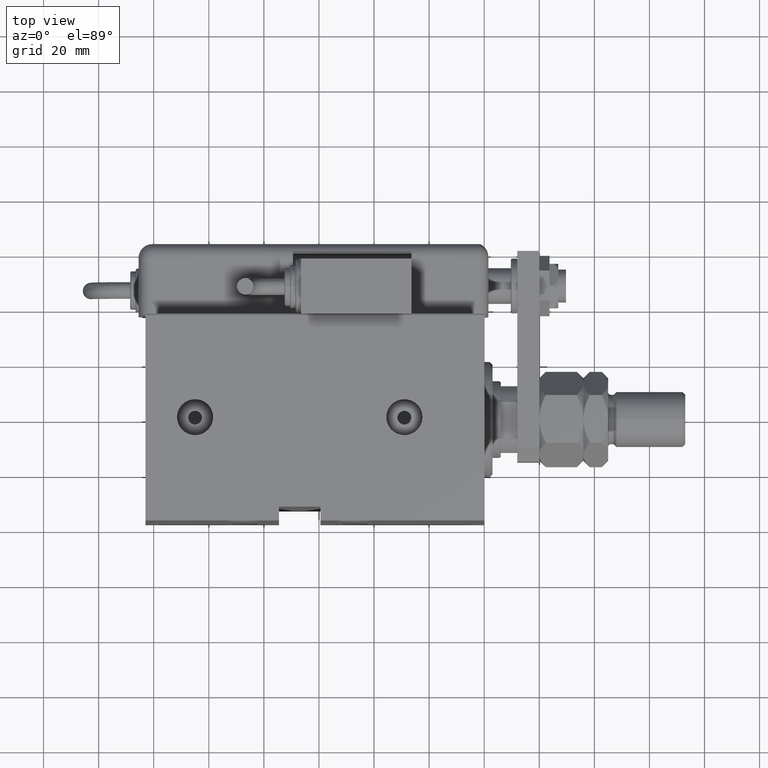
[diagram: clean part render]
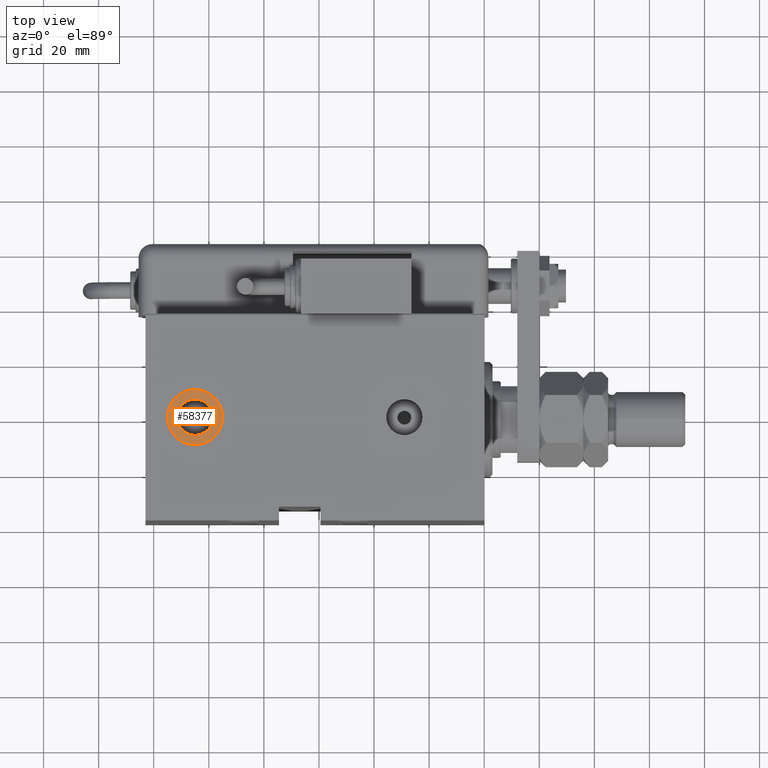
[diagram: same view with one face highlighted and labeled with its STEP entity id]
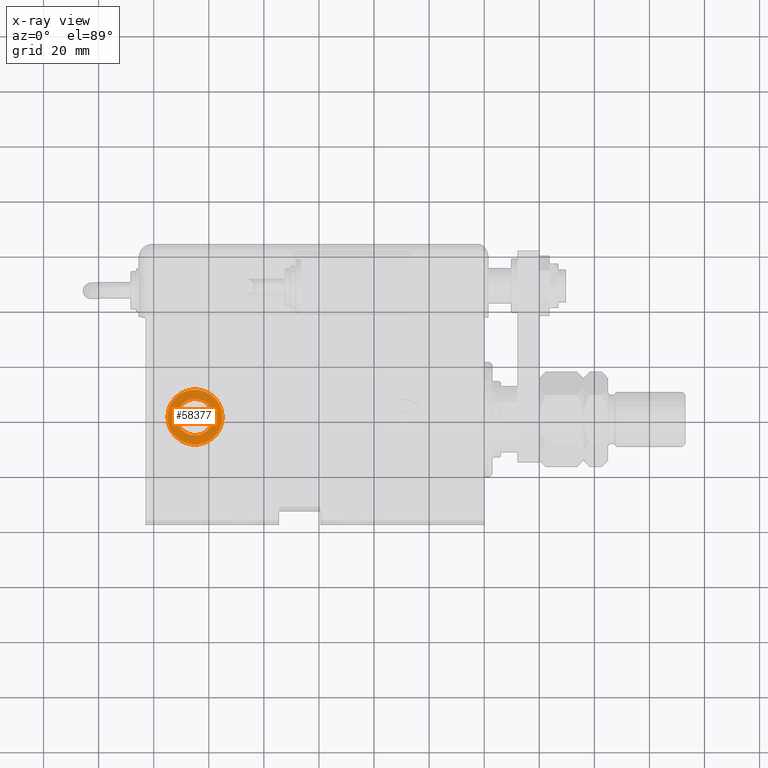
[diagram: x-ray of the same camera — body ghosted, the highlighted face saturated]
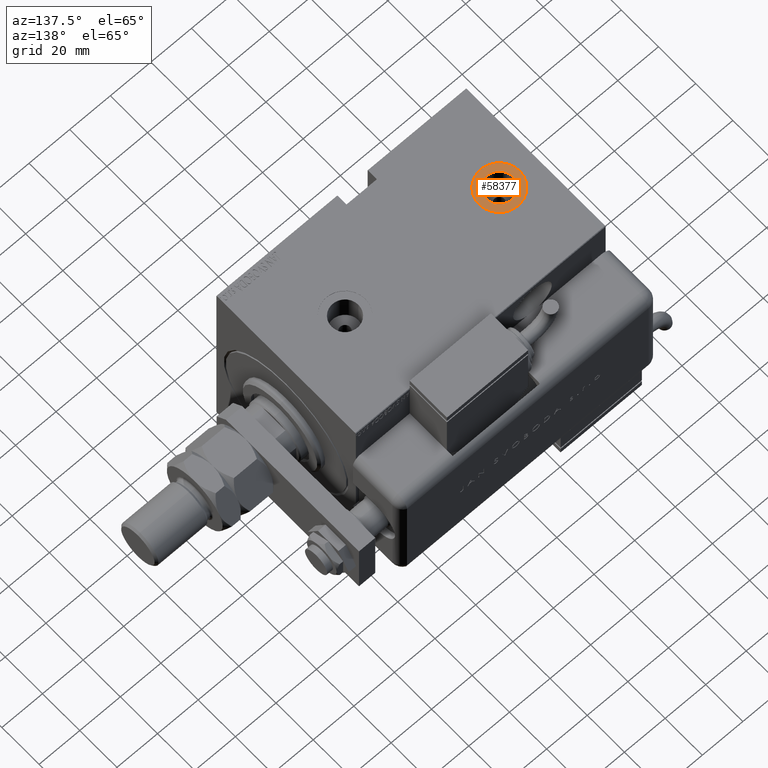
[diagram: same view with one face highlighted and labeled with its STEP entity id]
A machine part, top view. The second image highlights one B-rep face of the part: STEP entity #58377.
The next image is the same camera in x-ray: the body ghosted, the highlighted face saturated — about 0% of this face is hidden behind the body in this view.
A second angle (auxiliary view) of the same face is appended — the face is thin or edge-on in the first view.
In plain terms, the highlighted planar face has unit normal (0, 0, 1).
Its self-contained STEP definition (entity closure, byte-faithful):
#285 = DIRECTION ( 'NONE',  ( 0.000000000000000000, 0.000000000000000000, 1.000000000000000000 ) ) ;
#524 = FACE_BOUND ( 'NONE', #55594, .T. ) ;
#1138 = DIRECTION ( 'NONE',  ( 0.000000000000000000, 0.000000000000000000, 1.000000000000000000 ) ) ;
#1754 = CARTESIAN_POINT ( 'NONE',  ( 105.0000000000000000, -9.251858538542975377E-15, 49.90000000000000568 ) ) ;
#2909 = CIRCLE ( 'NONE', #55765, 9.999999999999994671 ) ;
#3522 = VERTEX_POINT ( 'NONE', #39454 ) ;
#6378 = EDGE_CURVE ( 'NONE', #7526, #22495, #2909, .T. ) ;
#7054 = DIRECTION ( 'NONE',  ( 0.000000000000000000, 0.000000000000000000, 1.000000000000000000 ) ) ;
#7526 = VERTEX_POINT ( 'NONE', #15167 ) ;
#8749 = DIRECTION ( 'NONE',  ( 1.000000000000000000, 0.000000000000000000, 0.000000000000000000 ) ) ;
#9362 = CARTESIAN_POINT ( 'NONE',  ( 105.0000000000000000, -9.251858538542975377E-15, 49.90000000000000568 ) ) ;
#12846 = AXIS2_PLACEMENT_3D ( 'NONE', #9362, #285, #8749 ) ;
#13559 = DIRECTION ( 'NONE',  ( 1.000000000000000000, 0.000000000000000000, 0.000000000000000000 ) ) ;
#15167 = CARTESIAN_POINT ( 'NONE',  ( 95.00000000000000000, -8.027211739395623896E-15, 49.90000000000000568 ) ) ;
#15809 = CARTESIAN_POINT ( 'NONE',  ( 105.0000000000000000, -9.251858538542975377E-15, 49.90000000000000568 ) ) ;
#17284 = VERTEX_POINT ( 'NONE', #45677 ) ;
#17543 = EDGE_LOOP ( 'NONE', ( #57636, #53870 ) ) ;
#19749 = EDGE_CURVE ( 'NONE', #3522, #17284, #53447, .T. ) ;
#22495 = VERTEX_POINT ( 'NONE', #50158 ) ;
#23457 = AXIS2_PLACEMENT_3D ( 'NONE', #15809, #7054, #30159 ) ;
#23563 = AXIS2_PLACEMENT_3D ( 'NONE', #37282, #56298, #13559 ) ;
#26103 = ORIENTED_EDGE ( 'NONE', *, *, #19749, .F. ) ;
#26330 = ORIENTED_EDGE ( 'NONE', *, *, #57763, .F. ) ;
#30159 = DIRECTION ( 'NONE',  ( 1.000000000000000000, 0.000000000000000000, 0.000000000000000000 ) ) ;
#30173 = DIRECTION ( 'NONE',  ( 1.000000000000000000, 0.000000000000000000, -0.000000000000000000 ) ) ;
#32822 = CIRCLE ( 'NONE', #12846, 6.580000000000002736 ) ;
#34561 = PLANE ( 'NONE',  #38791 ) ;
#37282 = CARTESIAN_POINT ( 'NONE',  ( 105.0000000000000000, -9.251858538542975377E-15, 49.90000000000000568 ) ) ;
#38791 = AXIS2_PLACEMENT_3D ( 'NONE', #1754, #1138, #30173 ) ;
#39454 = CARTESIAN_POINT ( 'NONE',  ( 111.5799999999999983, -9.251858538542975377E-15, 49.90000000000000568 ) ) ;
#41889 = DIRECTION ( 'NONE',  ( 0.000000000000000000, 0.000000000000000000, 1.000000000000000000 ) ) ;
#44521 = FACE_OUTER_BOUND ( 'NONE', #17543, .T. ) ;
#45677 = CARTESIAN_POINT ( 'NONE',  ( 98.41999999999998749, -8.446040944704016336E-15, 49.90000000000000568 ) ) ;
#45973 = EDGE_CURVE ( 'NONE', #22495, #7526, #61311, .T. ) ;
#50158 = CARTESIAN_POINT ( 'NONE',  ( 114.9999999999999858, -9.251858538542975377E-15, 49.90000000000000568 ) ) ;
#51237 = CARTESIAN_POINT ( 'NONE',  ( 105.0000000000000000, -9.251858538542975377E-15, 49.90000000000000568 ) ) ;
#53447 = CIRCLE ( 'NONE', #23563, 6.580000000000002736 ) ;
#53870 = ORIENTED_EDGE ( 'NONE', *, *, #6378, .T. ) ;
#55594 = EDGE_LOOP ( 'NONE', ( #26103, #26330 ) ) ;
#55765 = AXIS2_PLACEMENT_3D ( 'NONE', #51237, #41889, #60905 ) ;
#56298 = DIRECTION ( 'NONE',  ( 0.000000000000000000, 0.000000000000000000, 1.000000000000000000 ) ) ;
#57636 = ORIENTED_EDGE ( 'NONE', *, *, #45973, .T. ) ;
#57763 = EDGE_CURVE ( 'NONE', #17284, #3522, #32822, .T. ) ;
#58377 = ADVANCED_FACE ( 'NONE', ( #524, #44521 ), #34561, .T. ) ;
#60905 = DIRECTION ( 'NONE',  ( 1.000000000000000000, 0.000000000000000000, 0.000000000000000000 ) ) ;
#61311 = CIRCLE ( 'NONE', #23457, 9.999999999999994671 ) ;